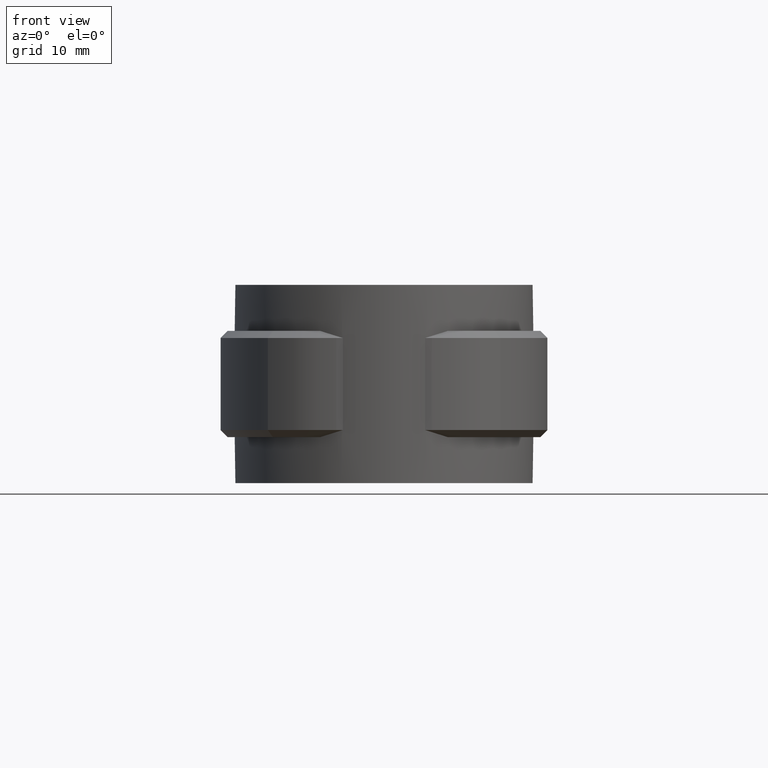
[diagram: clean part render]
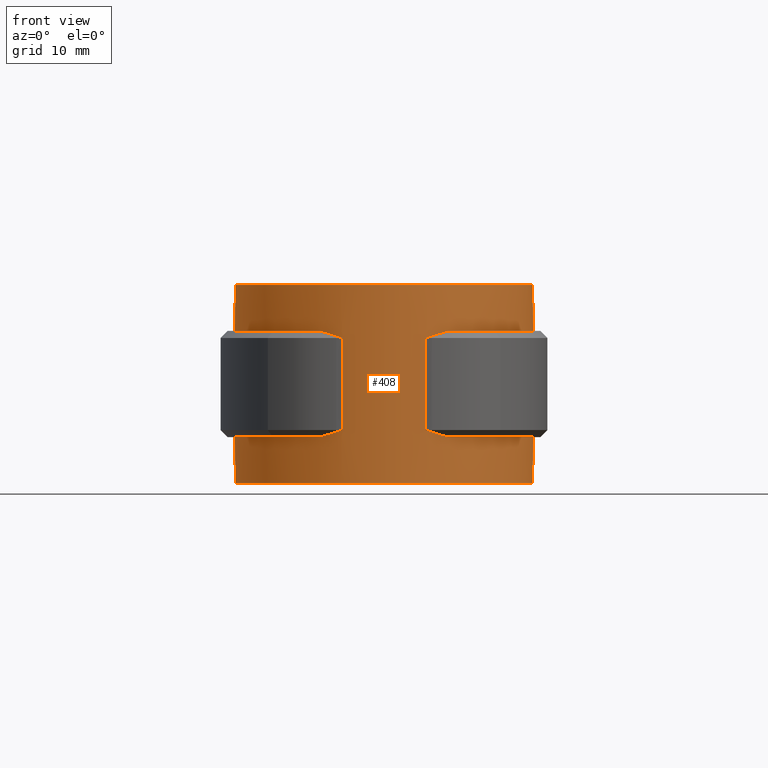
[diagram: same view with one face highlighted and labeled with its STEP entity id]
A machine part, front view. The second image highlights one B-rep face of the part: STEP entity #408.
In plain terms, the highlighted cylindrical surface (partial cylindrical patch) has radius 21.095 mm, axis along (0, 0, -1).
Its self-contained STEP definition (entity closure, byte-faithful):
#408 = ADVANCED_FACE( '', ( #708 ), #709, .T. );
#708 = FACE_OUTER_BOUND( '', #1506, .T. );
#709 = CYLINDRICAL_SURFACE( '', #1507, 21.0950000000000 );
#1506 = EDGE_LOOP( '', ( #3223, #3224, #3225, #3226, #3227, #3228, #3229, #3230, #3231, #3232, #3233, #3234, #3235, #3236, #3237, #3238, #3239, #3240, #3241, #3242 ) );
#1507 = AXIS2_PLACEMENT_3D( '', #3243, #3244, #3245 );
#3223 = ORIENTED_EDGE( '', *, *, #4276, .F. );
#3224 = ORIENTED_EDGE( '', *, *, #4271, .T. );
#3225 = ORIENTED_EDGE( '', *, *, #4268, .T. );
#3226 = ORIENTED_EDGE( '', *, *, #4277, .F. );
#3227 = ORIENTED_EDGE( '', *, *, #4278, .T. );
#3228 = ORIENTED_EDGE( '', *, *, #4279, .T. );
#3229 = ORIENTED_EDGE( '', *, *, #4280, .T. );
#3230 = ORIENTED_EDGE( '', *, *, #4281, .F. );
#3231 = ORIENTED_EDGE( '', *, *, #4282, .T. );
#3232 = ORIENTED_EDGE( '', *, *, #4283, .T. );
#3233 = ORIENTED_EDGE( '', *, *, #4284, .F. );
#3234 = ORIENTED_EDGE( '', *, *, #4285, .T. );
#3235 = ORIENTED_EDGE( '', *, *, #4286, .T. );
#3236 = ORIENTED_EDGE( '', *, *, #4287, .T. );
#3237 = ORIENTED_EDGE( '', *, *, #4288, .T. );
#3238 = ORIENTED_EDGE( '', *, *, #4289, .T. );
#3239 = ORIENTED_EDGE( '', *, *, #4290, .T. );
#3240 = ORIENTED_EDGE( '', *, *, #4291, .T. );
#3241 = ORIENTED_EDGE( '', *, *, #4292, .F. );
#3242 = ORIENTED_EDGE( '', *, *, #4293, .F. );
#3243 = CARTESIAN_POINT( '', ( -4.33680868994202E-015, 0.000000000000000, -26.5000000000000 ) );
#3244 = DIRECTION( '', ( 0.000000000000000, 0.000000000000000, -1.00000000000000 ) );
#3245 = DIRECTION( '', ( -1.00000000000000, 6.50521303491303E-017, 0.000000000000000 ) );
#4268 = EDGE_CURVE( '', #4972, #4975, #4977, .T. );
#4271 = EDGE_CURVE( '', #4982, #4972, #4983, .F. );
#4276 = EDGE_CURVE( '', #4982, #4990, #4991, .T. );
#4277 = EDGE_CURVE( '', #4992, #4975, #4993, .T. );
#4278 = EDGE_CURVE( '', #4992, #4994, #4995, .F. );
#4279 = EDGE_CURVE( '', #4994, #4996, #4997, .T. );
#4280 = EDGE_CURVE( '', #4996, #4998, #4999, .T. );
#4281 = EDGE_CURVE( '', #5000, #4998, #5001, .T. );
#4282 = EDGE_CURVE( '', #5000, #5002, #5003, .T. );
#4283 = EDGE_CURVE( '', #5002, #5004, #5005, .T. );
#4284 = EDGE_CURVE( '', #5006, #5004, #5007, .T. );
#4285 = EDGE_CURVE( '', #5006, #5008, #5009, .F. );
#4286 = EDGE_CURVE( '', #5008, #5010, #5011, .F. );
#4287 = EDGE_CURVE( '', #5010, #5012, #5013, .T. );
#4288 = EDGE_CURVE( '', #5012, #5014, #5015, .T. );
#4289 = EDGE_CURVE( '', #5014, #5016, #5017, .T. );
#4290 = EDGE_CURVE( '', #5016, #5018, #5019, .T. );
#4291 = EDGE_CURVE( '', #5018, #5020, #5021, .T. );
#4292 = EDGE_CURVE( '', #5022, #5020, #5023, .T. );
#4293 = EDGE_CURVE( '', #4990, #5022, #5024, .T. );
#4972 = VERTEX_POINT( '', #7432 );
#4975 = VERTEX_POINT( '', #7436 );
#4977 = ELLIPSE( '', #7439, 29.8328350982604, 21.0950000000000 );
#4982 = VERTEX_POINT( '', #7445 );
#4983 = B_SPLINE_CURVE_WITH_KNOTS( '', 3, ( #7446, #7447, #7448, #7449 ), .UNSPECIFIED., .F., .F., ( 4, 4 ), ( 0.00442606500985390, 0.00694777175343141 ), .UNSPECIFIED. );
#4990 = VERTEX_POINT( '', #7459 );
#4991 = CIRCLE( '', #7460, 21.0950000000000 );
#4992 = VERTEX_POINT( '', #7461 );
#4993 = LINE( '', #7462, #7463 );
#4994 = VERTEX_POINT( '', #7464 );
#4995 = ELLIPSE( '', #7465, 29.8328350982604, 21.0950000000000 );
#4996 = VERTEX_POINT( '', #7466 );
#4997 = B_SPLINE_CURVE_WITH_KNOTS( '', 3, ( #7467, #7468, #7469, #7470 ), .UNSPECIFIED., .F., .F., ( 4, 4 ), ( 0.00442606500985391, 0.00694777175343142 ), .UNSPECIFIED. );
#4998 = VERTEX_POINT( '', #7471 );
#4999 = CIRCLE( '', #7472, 21.0950000000000 );
#5000 = VERTEX_POINT( '', #7473 );
#5001 = LINE( '', #7474, #7475 );
#5002 = VERTEX_POINT( '', #7476 );
#5003 = CIRCLE( '', #7477, 21.0950000000000 );
#5004 = VERTEX_POINT( '', #7478 );
#5005 = LINE( '', #7479, #7480 );
#5006 = VERTEX_POINT( '', #7481 );
#5007 = CIRCLE( '', #7482, 21.0950000000000 );
#5008 = VERTEX_POINT( '', #7483 );
#5009 = B_SPLINE_CURVE_WITH_KNOTS( '', 3, ( #7484, #7485, #7486, #7487 ), .UNSPECIFIED., .F., .F., ( 4, 4 ), ( 0.00442606500985392, 0.00694777175343142 ), .UNSPECIFIED. );
#5010 = VERTEX_POINT( '', #7488 );
#5011 = ELLIPSE( '', #7489, 29.8328350982604, 21.0950000000000 );
#5012 = VERTEX_POINT( '', #7490 );
#5013 = LINE( '', #7491, #7492 );
#5014 = VERTEX_POINT( '', #7493 );
#5015 = ELLIPSE( '', #7494, 29.8328350982604, 21.0950000000000 );
#5016 = VERTEX_POINT( '', #7495 );
#5017 = B_SPLINE_CURVE_WITH_KNOTS( '', 3, ( #7496, #7497, #7498, #7499 ), .UNSPECIFIED., .F., .F., ( 4, 4 ), ( 0.00442606500985391, 0.00694777175343142 ), .UNSPECIFIED. );
#5018 = VERTEX_POINT( '', #7500 );
#5019 = CIRCLE( '', #7501, 21.0950000000000 );
#5020 = VERTEX_POINT( '', #7502 );
#5021 = LINE( '', #7503, #7504 );
#5022 = VERTEX_POINT( '', #7505 );
#5023 = CIRCLE( '', #7506, 21.0950000000000 );
#5024 = LINE( '', #7507, #7508 );
#7432 = CARTESIAN_POINT( '', ( -6.74778667416212, -19.9866555481401, -5.70665554814012 ) );
#7436 = CARTESIAN_POINT( '', ( -5.80694627149245, -20.2800000000000, -6.00000000000001 ) );
#7439 = AXIS2_PLACEMENT_3D( '', #8366, #8367, #8368 );
#7445 = CARTESIAN_POINT( '', ( -9.00579582913148, -19.0760233404134, -5.00000000000000 ) );
#7446 = CARTESIAN_POINT( '', ( -6.74778667416211, -19.9866555481401, -5.70665554814012 ) );
#7447 = CARTESIAN_POINT( '', ( -7.50699175994535, -19.7303368284591, -5.45033682845913 ) );
#7448 = CARTESIAN_POINT( '', ( -8.25945996055680, -19.4283687078099, -5.21289271223882 ) );
#7449 = CARTESIAN_POINT( '', ( -9.00579582913148, -19.0760233404134, -5.00000000000000 ) );
#7459 = CARTESIAN_POINT( '', ( -6.10000000000003, 20.1937867919813, -5.00000000000000 ) );
#7460 = AXIS2_PLACEMENT_3D( '', #8382, #8383, #8384 );
#7461 = CARTESIAN_POINT( '', ( -5.80694627149245, -20.2800000000000, -19.0000000000000 ) );
#7462 = CARTESIAN_POINT( '', ( -5.80694627149245, -20.2800000000000, -20.0000000000000 ) );
#7463 = VECTOR( '', #8385, 1000.00000000000 );
#7464 = CARTESIAN_POINT( '', ( -6.74778667416212, -19.9866555481401, -19.2933444518599 ) );
#7465 = AXIS2_PLACEMENT_3D( '', #8386, #8387, #8388 );
#7466 = CARTESIAN_POINT( '', ( -9.00579582913148, -19.0760233404134, -20.0000000000000 ) );
#7467 = CARTESIAN_POINT( '', ( -6.74778667416211, -19.9866555481401, -19.2933444518599 ) );
#7468 = CARTESIAN_POINT( '', ( -7.50699175994535, -19.7303368284591, -19.5496631715409 ) );
#7469 = CARTESIAN_POINT( '', ( -8.25945996055680, -19.4283687078099, -19.7871072877612 ) );
#7470 = CARTESIAN_POINT( '', ( -9.00579582913148, -19.0760233404134, -20.0000000000000 ) );
#7471 = CARTESIAN_POINT( '', ( -6.10000000000003, 20.1937867919813, -20.0000000000000 ) );
#7472 = AXIS2_PLACEMENT_3D( '', #8389, #8390, #8391 );
#7473 = CARTESIAN_POINT( '', ( -6.10000000000003, 20.1937867919813, -26.5000000000000 ) );
#7474 = CARTESIAN_POINT( '', ( -6.10000000000003, 20.1937867919813, -26.5000000000000 ) );
#7475 = VECTOR( '', #8392, 1000.00000000000 );
#7476 = CARTESIAN_POINT( '', ( 6.09999999999997, 20.1937867919813, -26.5000000000000 ) );
#7477 = AXIS2_PLACEMENT_3D( '', #8393, #8394, #8395 );
#7478 = CARTESIAN_POINT( '', ( 6.09999999999997, 20.1937867919813, -20.0000000000000 ) );
#7479 = CARTESIAN_POINT( '', ( 6.09999999999997, 20.1937867919813, -26.5000000000000 ) );
#7480 = VECTOR( '', #8396, 1000.00000000000 );
#7481 = CARTESIAN_POINT( '', ( 9.00579582913148, -19.0760233404134, -20.0000000000000 ) );
#7482 = AXIS2_PLACEMENT_3D( '', #8397, #8398, #8399 );
#7483 = CARTESIAN_POINT( '', ( 6.74778667416212, -19.9866555481401, -19.2933444518599 ) );
#7484 = CARTESIAN_POINT( '', ( 6.74778667416212, -19.9866555481401, -19.2933444518599 ) );
#7485 = CARTESIAN_POINT( '', ( 7.50699175994536, -19.7303368284591, -19.5496631715409 ) );
#7486 = CARTESIAN_POINT( '', ( 8.25945996055681, -19.4283687078099, -19.7871072877612 ) );
#7487 = CARTESIAN_POINT( '', ( 9.00579582913148, -19.0760233404134, -20.0000000000000 ) );
#7488 = CARTESIAN_POINT( '', ( 5.80694627149244, -20.2800000000000, -19.0000000000000 ) );
#7489 = AXIS2_PLACEMENT_3D( '', #8400, #8401, #8402 );
#7490 = CARTESIAN_POINT( '', ( 5.80694627149244, -20.2800000000000, -6.00000000000001 ) );
#7491 = CARTESIAN_POINT( '', ( 5.80694627149244, -20.2800000000000, -20.0000000000000 ) );
#7492 = VECTOR( '', #8403, 1000.00000000000 );
#7493 = CARTESIAN_POINT( '', ( 6.74778667416211, -19.9866555481401, -5.70665554814012 ) );
#7494 = AXIS2_PLACEMENT_3D( '', #8404, #8405, #8406 );
#7495 = CARTESIAN_POINT( '', ( 9.00579582913148, -19.0760233404134, -5.00000000000000 ) );
#7496 = CARTESIAN_POINT( '', ( 6.74778667416211, -19.9866555481401, -5.70665554814011 ) );
#7497 = CARTESIAN_POINT( '', ( 7.50699175994535, -19.7303368284591, -5.45033682845912 ) );
#7498 = CARTESIAN_POINT( '', ( 8.25945996055680, -19.4283687078099, -5.21289271223882 ) );
#7499 = CARTESIAN_POINT( '', ( 9.00579582913148, -19.0760233404134, -4.99999999999999 ) );
#7500 = CARTESIAN_POINT( '', ( 6.09999999999998, 20.1937867919813, -5.00000000000000 ) );
#7501 = AXIS2_PLACEMENT_3D( '', #8407, #8408, #8409 );
#7502 = CARTESIAN_POINT( '', ( 6.09999999999997, 20.1937867919813, 1.50000000000000 ) );
#7503 = CARTESIAN_POINT( '', ( 6.09999999999997, 20.1937867919813, -26.5000000000000 ) );
#7504 = VECTOR( '', #8410, 1000.00000000000 );
#7505 = CARTESIAN_POINT( '', ( -6.10000000000003, 20.1937867919813, 1.50000000000000 ) );
#7506 = AXIS2_PLACEMENT_3D( '', #8411, #8412, #8413 );
#7507 = CARTESIAN_POINT( '', ( -6.10000000000003, 20.1937867919813, -26.5000000000000 ) );
#7508 = VECTOR( '', #8414, 1000.00000000000 );
#8366 = CARTESIAN_POINT( '', ( -4.33680868994202E-015, 0.000000000000000, 14.2800000000000 ) );
#8367 = DIRECTION( '', ( 0.000000000000000, -0.707106781186548, 0.707106781186548 ) );
#8368 = DIRECTION( '', ( 0.000000000000000, 0.707106781186548, 0.707106781186548 ) );
#8382 = CARTESIAN_POINT( '', ( -8.67361737988404E-016, -6.93889390390723E-015, -5.00000000000000 ) );
#8383 = DIRECTION( '', ( 0.000000000000000, 0.000000000000000, -1.00000000000000 ) );
#8384 = DIRECTION( '', ( 1.00000000000000, -5.55111512312578E-017, 0.000000000000000 ) );
#8385 = DIRECTION( '', ( 0.000000000000000, 0.000000000000000, 1.00000000000000 ) );
#8386 = CARTESIAN_POINT( '', ( -4.33680868994202E-015, 0.000000000000000, -39.2800000000000 ) );
#8387 = DIRECTION( '', ( 0.000000000000000, 0.707106781186548, 0.707106781186548 ) );
#8388 = DIRECTION( '', ( 0.000000000000000, -0.707106781186548, 0.707106781186548 ) );
#8389 = CARTESIAN_POINT( '', ( -8.67361737988404E-016, -6.93889390390723E-015, -20.0000000000000 ) );
#8390 = DIRECTION( '', ( 0.000000000000000, 0.000000000000000, -1.00000000000000 ) );
#8391 = DIRECTION( '', ( 1.00000000000000, -5.55111512312578E-017, 0.000000000000000 ) );
#8392 = DIRECTION( '', ( 0.000000000000000, 0.000000000000000, 1.00000000000000 ) );
#8393 = CARTESIAN_POINT( '', ( -4.33680868994202E-015, 0.000000000000000, -26.5000000000000 ) );
#8394 = DIRECTION( '', ( 0.000000000000000, 0.000000000000000, 1.00000000000000 ) );
#8395 = DIRECTION( '', ( 1.00000000000000, -6.50521303491303E-017, 0.000000000000000 ) );
#8396 = DIRECTION( '', ( 0.000000000000000, 0.000000000000000, 1.00000000000000 ) );
#8397 = CARTESIAN_POINT( '', ( -8.67361737988404E-016, -6.93889390390723E-015, -20.0000000000000 ) );
#8398 = DIRECTION( '', ( 0.000000000000000, 0.000000000000000, 1.00000000000000 ) );
#8399 = DIRECTION( '', ( 1.00000000000000, -5.55111512312578E-017, 0.000000000000000 ) );
#8400 = CARTESIAN_POINT( '', ( -4.33680868994202E-015, 0.000000000000000, -39.2800000000000 ) );
#8401 = DIRECTION( '', ( 0.000000000000000, 0.707106781186548, 0.707106781186548 ) );
#8402 = DIRECTION( '', ( 0.000000000000000, -0.707106781186548, 0.707106781186548 ) );
#8403 = DIRECTION( '', ( 0.000000000000000, 0.000000000000000, 1.00000000000000 ) );
#8404 = CARTESIAN_POINT( '', ( -4.33680868994202E-015, 0.000000000000000, 14.2800000000000 ) );
#8405 = DIRECTION( '', ( 0.000000000000000, -0.707106781186548, 0.707106781186548 ) );
#8406 = DIRECTION( '', ( 0.000000000000000, 0.707106781186548, 0.707106781186548 ) );
#8407 = CARTESIAN_POINT( '', ( -8.67361737988404E-016, -6.93889390390723E-015, -5.00000000000000 ) );
#8408 = DIRECTION( '', ( 0.000000000000000, 0.000000000000000, 1.00000000000000 ) );
#8409 = DIRECTION( '', ( 1.00000000000000, -5.55111512312578E-017, 0.000000000000000 ) );
#8410 = DIRECTION( '', ( 0.000000000000000, 0.000000000000000, 1.00000000000000 ) );
#8411 = CARTESIAN_POINT( '', ( -4.33680868994202E-015, 0.000000000000000, 1.50000000000000 ) );
#8412 = DIRECTION( '', ( 0.000000000000000, 0.000000000000000, 1.00000000000000 ) );
#8413 = DIRECTION( '', ( 1.00000000000000, -6.50521303491303E-017, 0.000000000000000 ) );
#8414 = DIRECTION( '', ( 0.000000000000000, 0.000000000000000, 1.00000000000000 ) );